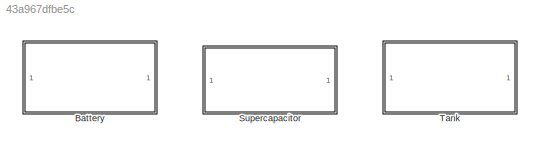
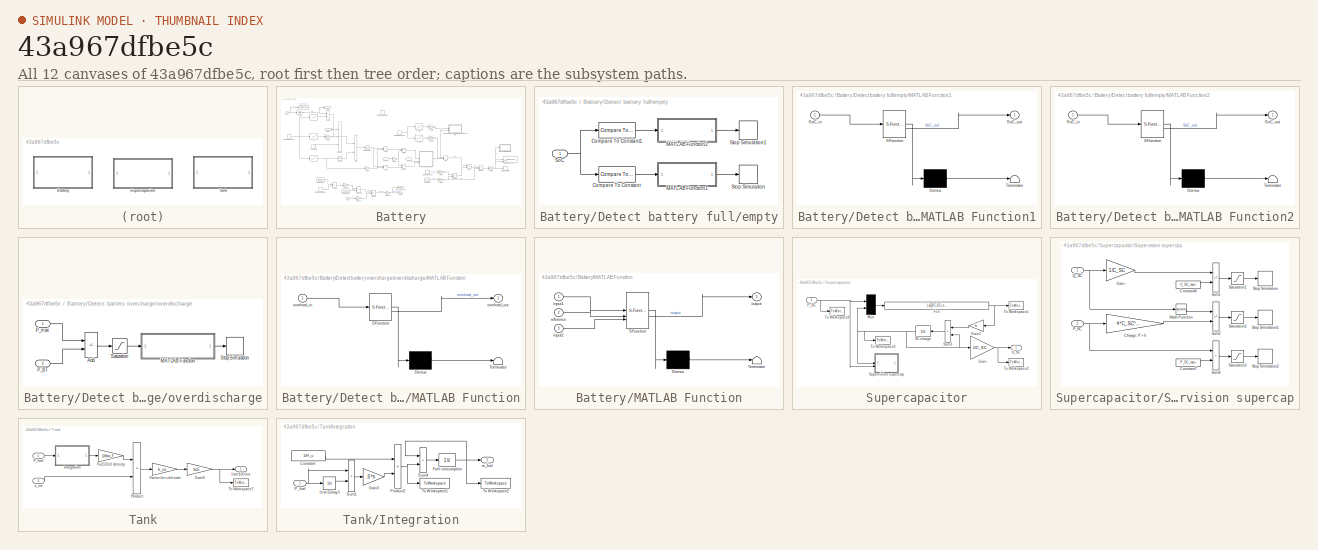
[diagram: thumbnail index - all 12 canvases of the model, root first then tree order]
MODEL slx_43a967dfbe5c
KIND library
CONFIG AbsTol = auto
CONFIG EnableMultiTasking = off
CONFIG FixedStep = auto
CONFIG MaxStep = auto
CONFIG MinStep = auto
CONFIG RelTol = 1e-3
CONFIG SampleTimeConstraint = Unconstrained
CONFIG SolverName = VariableStepAuto
CONFIG StartTime = 0.0
CONFIG StopTime = 10.0
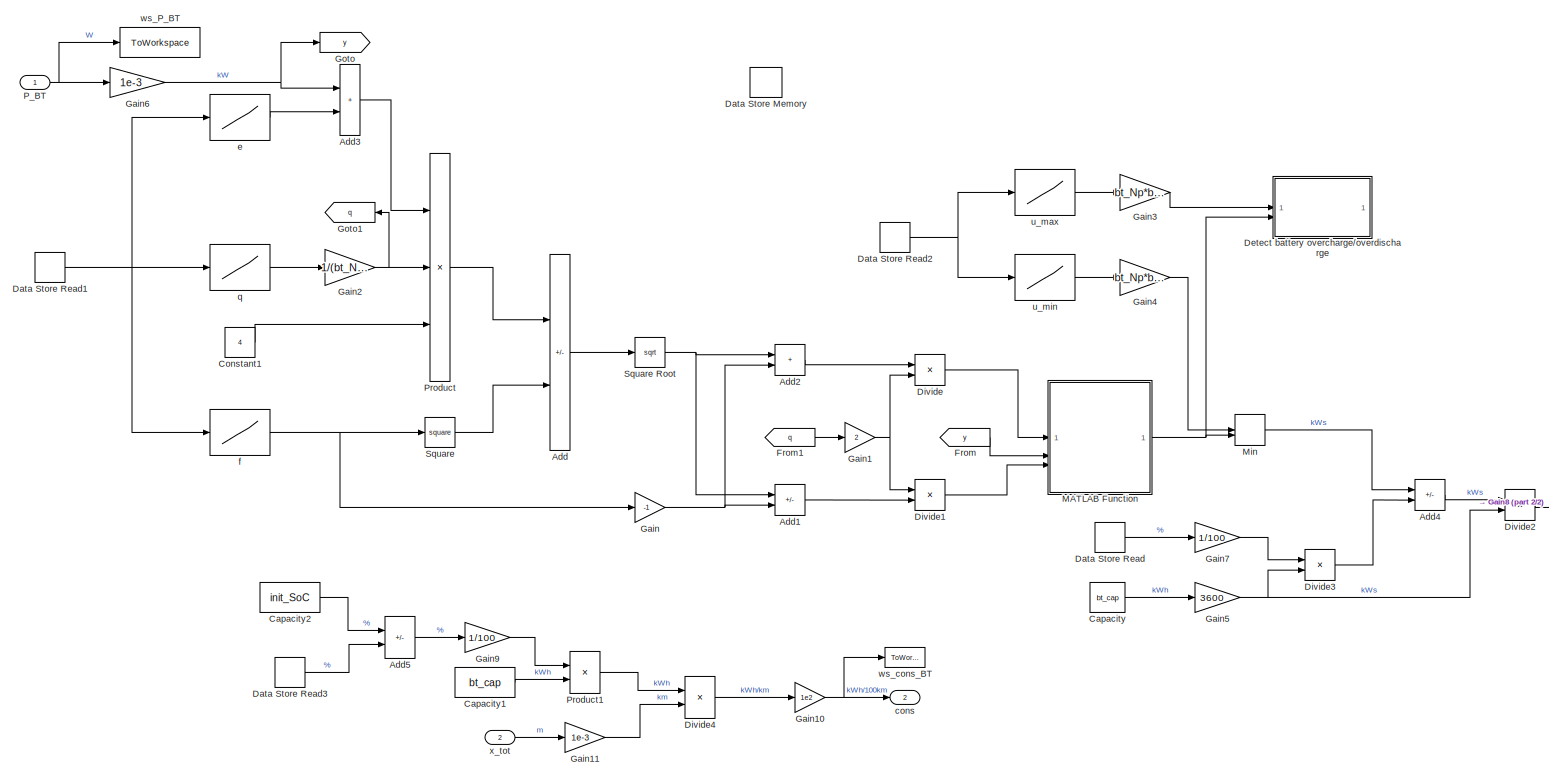
[diagram: Battery - part 1/2, most of the canvas]
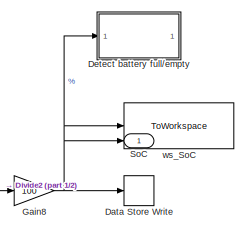
[diagram: Battery - part 2/2, middle right region]
BLOCK [SubSystem] Battery
BLOCK [Sum] Battery/Add
  IconShape = rectangular
  Inputs = -+
BLOCK [Sum] Battery/Add1
  IconShape = rectangular
  Inputs = -+
BLOCK [Sum] Battery/Add2
  IconShape = rectangular
BLOCK [Sum] Battery/Add3
  IconShape = rectangular
BLOCK [Sum] Battery/Add4
  IconShape = rectangular
  Inputs = -+
BLOCK [Sum] Battery/Add5
  IconShape = rectangular
  Inputs = +-
BLOCK [Constant] Battery/Capacity
  Value = bt_cap
BLOCK [Constant] Battery/Capacity1
  Value = bt_cap
BLOCK [Constant] Battery/Capacity2
  Value = init_SoC
BLOCK [Constant] Battery/Constant1
  Value = 4
BLOCK [DataStoreMemory] Battery/Data Store Memory
  DataStoreName = SoC
  InitialValue = init_SoC
  OutMax = 100
  OutMin = 0
  ReadBeforeWriteMsg = warning
  ShowAdditionalParam = off
  WriteAfterReadMsg = warning
  WriteAfterWriteMsg = warning
BLOCK [DataStoreRead] Battery/Data Store Read
  DataStoreName = SoC
  IndexOptions = Index vector (dialog)
  Indices = 1
  OutputSizes = 1
BLOCK [DataStoreRead] Battery/Data Store Read1
  DataStoreName = SoC
  IndexOptions = Index vector (dialog)
  Indices = 1
  OutputSizes = 1
BLOCK [DataStoreRead] Battery/Data Store Read2
  DataStoreName = SoC
  IndexOptions = Index vector (dialog)
  Indices = 1
  OutputSizes = 1
BLOCK [DataStoreRead] Battery/Data Store Read3
  DataStoreName = SoC
  IndexOptions = Index vector (dialog)
  Indices = 1
  OutputSizes = 1
BLOCK [DataStoreWrite] Battery/Data Store Write
  DataStoreName = SoC
  IndexOptions = Index vector (dialog)
  Indices = 1
  OutputSizes = 1
BLOCK [SubSystem] Battery/Detect battery full//empty
BLOCK [Reference] Battery/Detect battery full//empty/Compare To Constant  REF=simulink/Logic and Bit
Operations/Compare
To Constant
  SourceBlock = simulink/Logic and Bit\nOperations/Compare\nTo Constant
  SourceType = Compare To Constant
BLOCK [Reference] Battery/Detect battery full//empty/Compare To Constant1  REF=simulink/Logic and Bit
Operations/Compare
To Constant
  SourceBlock = simulink/Logic and Bit\nOperations/Compare\nTo Constant
  SourceType = Compare To Constant
BLOCK [SubSystem] Battery/Detect battery full//empty/MATLAB Function1
  ErrorFcn = Stateflow.Translate.translate
  PermitHierarchicalResolution = ExplicitOnly
  SFBlockType = MATLAB Function
  TreatAsAtomicUnit = on
BLOCK [Demux] Battery/Detect battery full//empty/MATLAB Function1/ Demux 
  Outputs = 1
BLOCK [S-Function] Battery/Detect battery full//empty/MATLAB Function1/ SFunction 
  EnableBusSupport = off
  FunctionName = sf_sfun
  PortCounts = [1 2]
  SFcnIsStateOwnerBlock = off
  SFunctionDeploymentMode = off
  Tag = Stateflow S-Function 1
BLOCK [Terminator] Battery/Detect battery full//empty/MATLAB Function1/ Terminator 
BLOCK [Inport] Battery/Detect battery full//empty/MATLAB Function1/SoC_in
BLOCK [Outport] Battery/Detect battery full//empty/MATLAB Function1/SoC_out
BLOCK [SubSystem] Battery/Detect battery full//empty/MATLAB Function2
  ErrorFcn = Stateflow.Translate.translate
  PermitHierarchicalResolution = ExplicitOnly
  SFBlockType = MATLAB Function
  TreatAsAtomicUnit = on
BLOCK [Demux] Battery/Detect battery full//empty/MATLAB Function2/ Demux 
  Outputs = 1
BLOCK [S-Function] Battery/Detect battery full//empty/MATLAB Function2/ SFunction 
  EnableBusSupport = off
  FunctionName = sf_sfun
  PortCounts = [1 2]
  SFcnIsStateOwnerBlock = off
  SFunctionDeploymentMode = off
  Tag = Stateflow S-Function 3
BLOCK [Terminator] Battery/Detect battery full//empty/MATLAB Function2/ Terminator 
BLOCK [Inport] Battery/Detect battery full//empty/MATLAB Function2/SoC_in
BLOCK [Outport] Battery/Detect battery full//empty/MATLAB Function2/SoC_out
BLOCK [Inport] Battery/Detect battery full//empty/SoC
BLOCK [Stop] Battery/Detect battery full//empty/Stop Simulation
BLOCK [Stop] Battery/Detect battery full//empty/Stop Simulation1
BLOCK [SubSystem] Battery/Detect battery overcharge//overdischarge
BLOCK [Sum] Battery/Detect battery overcharge//overdischarge/Add
  IconShape = rectangular
  Inputs = +-
BLOCK [SubSystem] Battery/Detect battery overcharge//overdischarge/MATLAB Function
  ErrorFcn = Stateflow.Translate.translate
  PermitHierarchicalResolution = ExplicitOnly
  SFBlockType = MATLAB Function
  TreatAsAtomicUnit = on
BLOCK [Demux] Battery/Detect battery overcharge//overdischarge/MATLAB Function/ Demux 
  Outputs = 1
BLOCK [S-Function] Battery/Detect battery overcharge//overdischarge/MATLAB Function/ SFunction 
  EnableBusSupport = off
  FunctionName = sf_sfun
  PortCounts = [1 2]
  SFcnIsStateOwnerBlock = off
  SFunctionDeploymentMode = off
  Tag = Stateflow S-Function 2
BLOCK [Terminator] Battery/Detect battery overcharge//overdischarge/MATLAB Function/ Terminator 
BLOCK [Inport] Battery/Detect battery overcharge//overdischarge/MATLAB Function/overload_in
BLOCK [Outport] Battery/Detect battery overcharge//overdischarge/MATLAB Function/overload_out
BLOCK [Inport] Battery/Detect battery overcharge//overdischarge/P_BT
  Port = 2
BLOCK [Inport] Battery/Detect battery overcharge//overdischarge/P_max
BLOCK [Saturate] Battery/Detect battery overcharge//overdischarge/Saturation
  LowerLimit = -inf
  UpperLimit = 0
BLOCK [Stop] Battery/Detect battery overcharge//overdischarge/Stop Simulation
BLOCK [Product] Battery/Divide
  Inputs = */
BLOCK [Product] Battery/Divide1
  Inputs = /*
  NameLocation = top
BLOCK [Product] Battery/Divide2
  Inputs = */
BLOCK [Product] Battery/Divide3
  Inputs = **
BLOCK [Product] Battery/Divide4
  Inputs = */
BLOCK [From] Battery/From
  GotoTag = y
BLOCK [From] Battery/From1
  GotoTag = q
BLOCK [Gain] Battery/Gain
  Gain = -1
BLOCK [Gain] Battery/Gain1
  Gain = 2
BLOCK [Gain] Battery/Gain10
  Gain = 1e2
BLOCK [Gain] Battery/Gain11
  Gain = 1e-3
BLOCK [Gain] Battery/Gain2
  Gain = 1/(bt_Np*bt_Ns)
BLOCK [Gain] Battery/Gain3
  Gain = bt_Np*bt_Ns
BLOCK [Gain] Battery/Gain4
  Gain = bt_Np*bt_Ns
BLOCK [Gain] Battery/Gain5
  Gain = 3600
BLOCK [Gain] Battery/Gain6
  Gain = 1e-3
BLOCK [Gain] Battery/Gain7
  Gain = 1/100
BLOCK [Gain] Battery/Gain8
  Gain = 100
BLOCK [Gain] Battery/Gain9
  Gain = 1/100
BLOCK [Goto] Battery/Goto
  GotoTag = y
BLOCK [Goto] Battery/Goto1
  GotoTag = q
BLOCK [SubSystem] Battery/MATLAB Function
  ErrorFcn = Stateflow.Translate.translate
  PermitHierarchicalResolution = ExplicitOnly
  SFBlockType = MATLAB Function
  TreatAsAtomicUnit = on
BLOCK [Demux] Battery/MATLAB Function/ Demux 
  Outputs = 1
BLOCK [S-Function] Battery/MATLAB Function/ SFunction 
  EnableBusSupport = off
  FunctionName = sf_sfun
  PortCounts = [3 2]
  SFcnIsStateOwnerBlock = off
  SFunctionDeploymentMode = off
  Tag = Stateflow S-Function 21
BLOCK [Terminator] Battery/MATLAB Function/ Terminator 
BLOCK [Inport] Battery/MATLAB Function/input1
BLOCK [Inport] Battery/MATLAB Function/input2
  Port = 3
BLOCK [Outport] Battery/MATLAB Function/output
  VectorParamsAs1DForOutWhenUnconnected = off
BLOCK [Inport] Battery/MATLAB Function/reference
  Port = 2
BLOCK [MinMax] Battery/Min
  Function = max
  Inputs = 2
BLOCK [Inport] Battery/P_BT
BLOCK [Product] Battery/Product
  Inputs = 3
BLOCK [Product] Battery/Product1
BLOCK [Outport] Battery/SoC
BLOCK [Math] Battery/Square
  Operator = square
BLOCK [Sqrt] Battery/Square Root
BLOCK [Outport] Battery/cons
  Port = 2
BLOCK [Lookup] Battery/e
  InputValues = batterymodel.qfe_SoC
  Table = batterymodel.e
BLOCK [Lookup] Battery/f
  InputValues = batterymodel.qfe_SoC
  Table = batterymodel.f
BLOCK [Lookup] Battery/q
  InputValues = batterymodel.qfe_SoC
  Table = batterymodel.q
BLOCK [Lookup] Battery/u_max
  InputValues = batterymodel.u_max_SoC
  Table = batterymodel.u_max
BLOCK [Lookup] Battery/u_min
  InputValues = batterymodel.u_min_SoC
  Table = batterymodel.u_min
BLOCK [ToWorkspace] Battery/ws_P_BT
  MaxDataPoints = inf
  NameLocation = top
  SampleTime = -1
  VariableName = P_BT1
BLOCK [ToWorkspace] Battery/ws_SoC
  MaxDataPoints = inf
  NameLocation = top
  SampleTime = -1
  VariableName = SoC1
BLOCK [ToWorkspace] Battery/ws_cons_BT
  MaxDataPoints = inf
  NameLocation = top
  SampleTime = -1
  VariableName = cons_BT1
BLOCK [Inport] Battery/x_tot
  Port = 2
BLOCK [SubSystem] Supercapacitor
  Tag = supercap
BLOCK [Fcn] Supercapacitor/Fcn
  Expr = (-u[2]/C_SC+sqrt(u[2]^2/C_SC^2-4*R_SC*u[1]))/(2*R_SC)
BLOCK [Gain] Supercapacitor/Gain
  Gain = 1/C_SC
  OutDataTypeStr = Inherit: Same as input
  ParamDataTypeStr = Inherit: Same as input
  SaturateOnIntegerOverflow = on
BLOCK [Gain] Supercapacitor/Gain1
  Gain = h
  NameLocation = top
  OutDataTypeStr = Inherit: Same as input
  ParamDataTypeStr = Inherit: Same as input
  SaturateOnIntegerOverflow = on
BLOCK [Mux] Supercapacitor/Mux
  Inputs = 2
BLOCK [Inport] Supercapacitor/P_SC
BLOCK [UnitDelay] Supercapacitor/SC charge
  InitialCondition = Q_SC_IC
  SampleTime = h
BLOCK [Sum] Supercapacitor/Sum3
  IconShape = rectangular
  InputSameDT = on
  OutDataTypeStr = Inherit: Same as first input
  SaturateOnIntegerOverflow = on
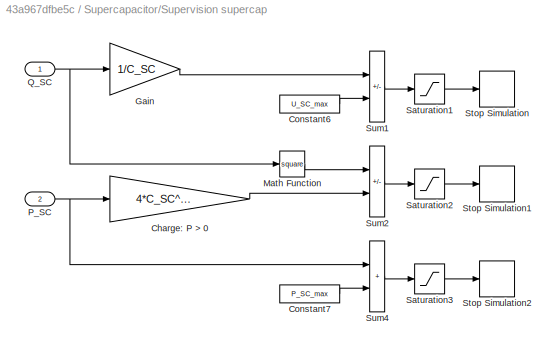
BLOCK [SubSystem] Supercapacitor/Supervision supercap
BLOCK [Gain] Supercapacitor/Supervision supercap/Charge: P > 0
  Gain = 4*C_SC^2*R_SC
  OutDataTypeStr = Inherit: Same as input
  ParamDataTypeStr = Inherit: Same as input
  SaturateOnIntegerOverflow = on
BLOCK [Constant] Supercapacitor/Supervision supercap/Constant6
  Value = U_SC_max
BLOCK [Constant] Supercapacitor/Supervision supercap/Constant7
  Value = P_SC_max
BLOCK [Gain] Supercapacitor/Supervision supercap/Gain
  Gain = 1/C_SC
  OutDataTypeStr = Inherit: Same as input
  ParamDataTypeStr = Inherit: Same as input
  SaturateOnIntegerOverflow = on
BLOCK [Math] Supercapacitor/Supervision supercap/Math Function
  NameLocation = top
  Operator = square
  SignedPower = on
BLOCK [Inport] Supercapacitor/Supervision supercap/P_SC
  Port = 2
BLOCK [Inport] Supercapacitor/Supervision supercap/Q_SC
BLOCK [Saturate] Supercapacitor/Supervision supercap/Saturation1
  LowerLimit = -inf
  UpperLimit = 0
BLOCK [Saturate] Supercapacitor/Supervision supercap/Saturation2
  LowerLimit = -inf
  UpperLimit = 0
BLOCK [Saturate] Supercapacitor/Supervision supercap/Saturation3
  LowerLimit = -inf
  UpperLimit = 0
BLOCK [Stop] Supercapacitor/Supervision supercap/Stop Simulation
BLOCK [Stop] Supercapacitor/Supervision supercap/Stop Simulation1
BLOCK [Stop] Supercapacitor/Supervision supercap/Stop Simulation2
BLOCK [Sum] Supercapacitor/Supervision supercap/Sum1
  IconShape = rectangular
  InputSameDT = on
  Inputs = -+
  OutDataTypeStr = Inherit: Same as first input
  SaturateOnIntegerOverflow = on
BLOCK [Sum] Supercapacitor/Supervision supercap/Sum2
  IconShape = rectangular
  InputSameDT = on
  Inputs = +-
  OutDataTypeStr = Inherit: Same as first input
  SaturateOnIntegerOverflow = on
BLOCK [Sum] Supercapacitor/Supervision supercap/Sum4
  IconShape = rectangular
  InputSameDT = on
  OutDataTypeStr = Inherit: Same as first input
  SaturateOnIntegerOverflow = on
BLOCK [ToWorkspace] Supercapacitor/To Workspace1
  MaxDataPoints = inf
  SampleTime = 1
  VariableName = I_SC
BLOCK [ToWorkspace] Supercapacitor/To Workspace2
  MaxDataPoints = inf
  SampleTime = 1
  VariableName = U_SC
BLOCK [ToWorkspace] Supercapacitor/To Workspace3
  MaxDataPoints = inf
  SampleTime = 1
  VariableName = Q_SC
BLOCK [ToWorkspace] Supercapacitor/To Workspace4
  MaxDataPoints = inf
  SampleTime = 1
  VariableName = P_SC
BLOCK [Outport] Supercapacitor/U_SC
  InitialOutput = 0
BLOCK [SubSystem] Tank
  Tag = tank
BLOCK [Gain] Tank/Factor for cold start
  Gain = k_cs
  OutDataTypeStr = Inherit: Same as input
  ParamDataTypeStr = Inherit: Same as input
  SaturateOnIntegerOverflow = on
BLOCK [Gain] Tank/Fu2131el density
  Gain = 1/rho_f
  OutDataTypeStr = Inherit: Same as input
  ParamDataTypeStr = Inherit: Same as input
  SaturateOnIntegerOverflow = on
BLOCK [Gain] Tank/Gain3
  Gain = 1e5
  NameLocation = top
  OutDataTypeStr = Inherit: Same as input
  ParamDataTypeStr = Inherit: Same as input
  SaturateOnIntegerOverflow = on
BLOCK [SubSystem] Tank/Integration
BLOCK [Constant] Tank/Integration/Constant
  Value = 1/H_u
BLOCK [UnitDelay] Tank/Integration/Fuel consumption
  SampleTime = h
BLOCK [Gain] Tank/Integration/Gain3
  Gain = .5*h
  OutDataTypeStr = Inherit: Same as input
  ParamDataTypeStr = Inherit: Same as input
  SaturateOnIntegerOverflow = on
BLOCK [Inport] Tank/Integration/P_fuel
BLOCK [Product] Tank/Integration/Product2
  InputSameDT = on
  OutDataTypeStr = Inherit: Same as first input
  RndMeth = Zero
  SaturateOnIntegerOverflow = on
BLOCK [Sum] Tank/Integration/Sum1
  IconShape = rectangular
  InputSameDT = on
  OutDataTypeStr = Inherit: Same as first input
  SaturateOnIntegerOverflow = on
BLOCK [Sum] Tank/Integration/Sum4
  IconShape = rectangular
  InputSameDT = on
  OutDataTypeStr = Inherit: Same as first input
  SaturateOnIntegerOverflow = on
BLOCK [ToWorkspace] Tank/Integration/To Workspace1
  MaxDataPoints = inf
  NameLocation = top
  SampleTime = -1
  VariableName = m_dot_fuel
BLOCK [ToWorkspace] Tank/Integration/To Workspace2
  MaxDataPoints = inf
  NameLocation = top
  SampleTime = -1
  VariableName = m_fuel
BLOCK [UnitDelay] Tank/Integration/Unit Delay3
  SampleTime = h
BLOCK [Outport] Tank/Integration/m_fuel
  InitialOutput = 0
BLOCK [Inport] Tank/P_fuel
BLOCK [Product] Tank/Product
  InputSameDT = on
  Inputs = */
  OutDataTypeStr = Inherit: Same as first input
  RndMeth = Zero
  SaturateOnIntegerOverflow = on
BLOCK [ToWorkspace] Tank/To Workspace7
  MaxDataPoints = inf
  NameLocation = top
  SampleTime = -1
  VariableName = V_liter
BLOCK [Outport] Tank/liter//100 km
  InitialOutput = 0
BLOCK [Inport] Tank/x_tot
  Port = 2
LINE Battery/Add1:1 -> Battery/Divide1:2
LINE Battery/Add2:1 -> Battery/Divide:1
LINE Battery/Add3:1 -> Battery/Product:1
LINE Battery/Add4:1 -> Battery/Divide2:1
LINE Battery/Add5:1 -> Battery/Gain9:1
LINE Battery/Add:1 -> Battery/Square Root:1
LINE Battery/Capacity1:1 -> Battery/Product1:2
LINE Battery/Capacity2:1 -> Battery/Add5:1
LINE Battery/Capacity:1 -> Battery/Gain5:1
LINE Battery/Constant1:1 -> Battery/Product:3
NET Battery/Data Store Read1:1 -> Battery/e:1, Battery/f:1, Battery/q:1
NET Battery/Data Store Read2:1 -> Battery/u_max:1, Battery/u_min:1
LINE Battery/Data Store Read3:1 -> Battery/Add5:2
LINE Battery/Data Store Read:1 -> Battery/Gain7:1
LINE Battery/Detect battery full//empty/Compare To Constant1:1 -> Battery/Detect battery full//empty/MATLAB Function2:1
LINE Battery/Detect battery full//empty/Compare To Constant:1 -> Battery/Detect battery full//empty/MATLAB Function1:1
LINE Battery/Detect battery full//empty/MATLAB Function1:1 -> Battery/Detect battery full//empty/Stop Simulation:1
LINE Battery/Detect battery full//empty/MATLAB Function2:1 -> Battery/Detect battery full//empty/Stop Simulation1:1
NET Battery/Detect battery full//empty/SoC:1 -> Battery/Detect battery full//empty/Compare To Constant1:1, Battery/Detect battery full//empty/Compare To Constant:1
LINE Battery/Detect battery overcharge//overdischarge/Add:1 -> Battery/Detect battery overcharge//overdischarge/Saturation:1
LINE Battery/Detect battery overcharge//overdischarge/MATLAB Function:1 -> Battery/Detect battery overcharge//overdischarge/Stop Simulation:1
LINE Battery/Detect battery overcharge//overdischarge/P_BT:1 -> Battery/Detect battery overcharge//overdischarge/Add:2
LINE Battery/Detect battery overcharge//overdischarge/P_max:1 -> Battery/Detect battery overcharge//overdischarge/Add:1
LINE Battery/Detect battery overcharge//overdischarge/Saturation:1 -> Battery/Detect battery overcharge//overdischarge/MATLAB Function:1
LINE Battery/Divide1:1 -> Battery/MATLAB Function:3
LINE Battery/Divide2:1 -> Battery/Gain8:1
LINE Battery/Divide3:1 -> Battery/Add4:2
LINE Battery/Divide4:1 -> Battery/Gain10:1
LINE Battery/Divide:1 -> Battery/MATLAB Function:1
LINE Battery/From1:1 -> Battery/Gain1:1
LINE Battery/From:1 -> Battery/MATLAB Function:2
NET Battery/Gain10:1 -> Battery/cons:1, Battery/ws_cons_BT:1
LINE Battery/Gain11:1 -> Battery/Divide4:2
NET Battery/Gain1:1 -> Battery/Divide1:1, Battery/Divide:2
NET Battery/Gain2:1 -> Battery/Goto1:1, Battery/Product:2
LINE Battery/Gain3:1 -> Battery/Detect battery overcharge//overdischarge:1
LINE Battery/Gain4:1 -> Battery/Min:1
NET Battery/Gain5:1 -> Battery/Divide2:2, Battery/Divide3:2
NET Battery/Gain6:1 -> Battery/Add3:1, Battery/Goto:1
LINE Battery/Gain7:1 -> Battery/Divide3:1
NET Battery/Gain8:1 -> Battery/Data Store Write:1, Battery/Detect battery full//empty:1, Battery/SoC:1, Battery/ws_SoC:1
LINE Battery/Gain9:1 -> Battery/Product1:1
NET Battery/Gain:1 -> Battery/Add1:2, Battery/Add2:2
NET Battery/MATLAB Function:1 -> Battery/Detect battery overcharge//overdischarge:2, Battery/Min:2
LINE Battery/Min:1 -> Battery/Add4:1
NET Battery/P_BT:1 -> Battery/Gain6:1, Battery/ws_P_BT:1
LINE Battery/Product1:1 -> Battery/Divide4:1
LINE Battery/Product:1 -> Battery/Add:1
NET Battery/Square Root:1 -> Battery/Add1:1, Battery/Add2:1
LINE Battery/Square:1 -> Battery/Add:2
LINE Battery/e:1 -> Battery/Add3:2
NET Battery/f:1 -> Battery/Gain:1, Battery/Square:1
LINE Battery/q:1 -> Battery/Gain2:1
LINE Battery/u_max:1 -> Battery/Gain3:1
LINE Battery/u_min:1 -> Battery/Gain4:1
LINE Battery/x_tot:1 -> Battery/Gain11:1
NET Supercapacitor/Fcn:1 -> Supercapacitor/Gain1:1, Supercapacitor/To Workspace1:1
LINE Supercapacitor/Gain1:1 -> Supercapacitor/Sum3:1
NET Supercapacitor/Gain:1 -> Supercapacitor/To Workspace2:1, Supercapacitor/U_SC:1
LINE Supercapacitor/Mux:1 -> Supercapacitor/Fcn:1
NET Supercapacitor/P_SC:1 -> Supercapacitor/Mux:1, Supercapacitor/Supervision supercap:2, Supercapacitor/To Workspace4:1
NET Supercapacitor/SC charge:1 -> Supercapacitor/Gain:1, Supercapacitor/Mux:2, Supercapacitor/Sum3:2, Supercapacitor/Supervision supercap:1, Supercapacitor/To Workspace3:1
LINE Supercapacitor/Sum3:1 -> Supercapacitor/SC charge:1
LINE Supercapacitor/Supervision supercap/Charge: P > 0:1 -> Supercapacitor/Supervision supercap/Sum2:2
LINE Supercapacitor/Supervision supercap/Constant6:1 -> Supercapacitor/Supervision supercap/Sum1:2
LINE Supercapacitor/Supervision supercap/Constant7:1 -> Supercapacitor/Supervision supercap/Sum4:2
LINE Supercapacitor/Supervision supercap/Gain:1 -> Supercapacitor/Supervision supercap/Sum1:1
LINE Supercapacitor/Supervision supercap/Math Function:1 -> Supercapacitor/Supervision supercap/Sum2:1
NET Supercapacitor/Supervision supercap/P_SC:1 -> Supercapacitor/Supervision supercap/Charge: P > 0:1, Supercapacitor/Supervision supercap/Sum4:1
NET Supercapacitor/Supervision supercap/Q_SC:1 -> Supercapacitor/Supervision supercap/Gain:1, Supercapacitor/Supervision supercap/Math Function:1
LINE Supercapacitor/Supervision supercap/Saturation1:1 -> Supercapacitor/Supervision supercap/Stop Simulation:1
LINE Supercapacitor/Supervision supercap/Saturation2:1 -> Supercapacitor/Supervision supercap/Stop Simulation1:1
LINE Supercapacitor/Supervision supercap/Saturation3:1 -> Supercapacitor/Supervision supercap/Stop Simulation2:1
LINE Supercapacitor/Supervision supercap/Sum1:1 -> Supercapacitor/Supervision supercap/Saturation1:1
LINE Supercapacitor/Supervision supercap/Sum2:1 -> Supercapacitor/Supervision supercap/Saturation2:1
LINE Supercapacitor/Supervision supercap/Sum4:1 -> Supercapacitor/Supervision supercap/Saturation3:1
LINE Tank/Factor for cold start:1 -> Tank/Gain3:1
LINE Tank/Fu2131el density:1 -> Tank/Product:1
NET Tank/Gain3:1 -> Tank/To Workspace7:1, Tank/liter//100 km:1
LINE Tank/Integration/Constant:1 -> Tank/Integration/Product2:1
NET Tank/Integration/Fuel consumption:1 -> Tank/Integration/Sum4:1, Tank/Integration/To Workspace2:1, Tank/Integration/m_fuel:1
LINE Tank/Integration/Gain3:1 -> Tank/Integration/Product2:2
NET Tank/Integration/P_fuel:1 -> Tank/Integration/Sum1:1, Tank/Integration/Unit Delay3:1
NET Tank/Integration/Product2:1 -> Tank/Integration/Sum4:2, Tank/Integration/To Workspace1:1
LINE Tank/Integration/Sum1:1 -> Tank/Integration/Gain3:1
LINE Tank/Integration/Sum4:1 -> Tank/Integration/Fuel consumption:1
LINE Tank/Integration/Unit Delay3:1 -> Tank/Integration/Sum1:2
LINE Tank/Integration:1 -> Tank/Fu2131el density:1
LINE Tank/P_fuel:1 -> Tank/Integration:1
LINE Tank/Product:1 -> Tank/Factor for cold start:1
LINE Tank/x_tot:1 -> Tank/Product:2
note: NET lines group one-source signal fan-out (src -> all destinations, sorted); 1:1 wires keep LINE
CHART Battery/Detect battery
 overcharge//overdischarge/MATLAB Function states=1 transitions=1
  STATE_LABEL 'eML_blk_kernel()'
  STATE_LABEL "SCRIPT:\nfunction overload_out = overload_fnc(overload_in)\n\nif overload_in~=0\n    disp('Simulation stopped due to Battery Overload.')\nend\n\noverload_out = overload_in;\n"
CHART Battery/Detect
 battery full//empty/MATLAB Function2 states=1 transitions=1
  STATE_LABEL 'eML_blk_kernel()'
  STATE_LABEL "SCRIPT:\nfunction SoC_out = full(SoC_in)\n\nif SoC_in~=0\n    disp('Simulation stopped due to Battery Full.')\nend\n\nSoC_out = SoC_in;\n"
CHART Battery/MATLAB Function states=1 transitions=1
  STATE_LABEL 'eML_blk_kernel()'
  STATE_LABEL 'SCRIPT:\nfunction output = fcn(input1,reference,input2)\nif abs(input1) > 1.5*reference\n    output = input2;\nelse\n    output = input1;\nend\nend'
CHART Battery/Detect
 battery full//empty/MATLAB Function1 states=1 transitions=1
  STATE_LABEL 'eML_blk_kernel()'
  STATE_LABEL "SCRIPT:\nfunction SoC_out = empty(SoC_in)\n\nif SoC_in~=0\n    disp('Simulation stopped due to Battery Empty.')\nend\n\nSoC_out = SoC_in;\n"
CHART  states=0 transitions=0
CHART  states=0 transitions=0
CHART  states=0 transitions=0
CHART  states=0 transitions=0
